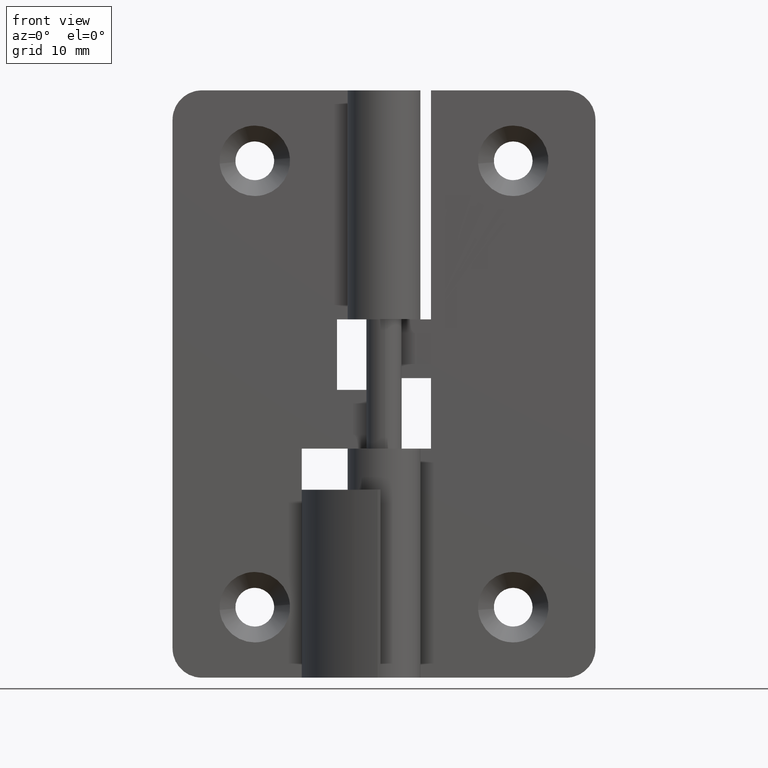
[diagram: clean part render]
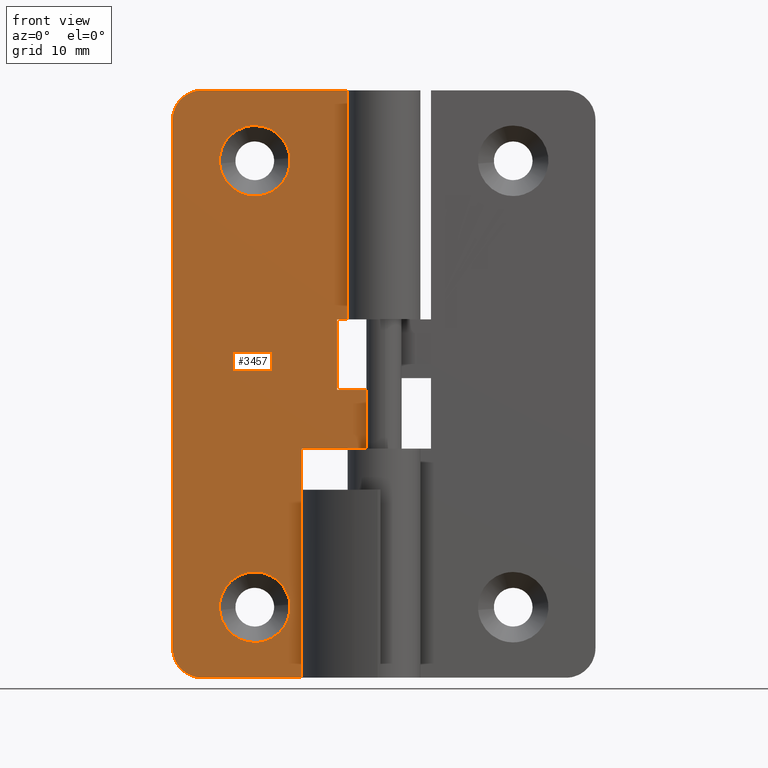
[diagram: same view with one face highlighted and labeled with its STEP entity id]
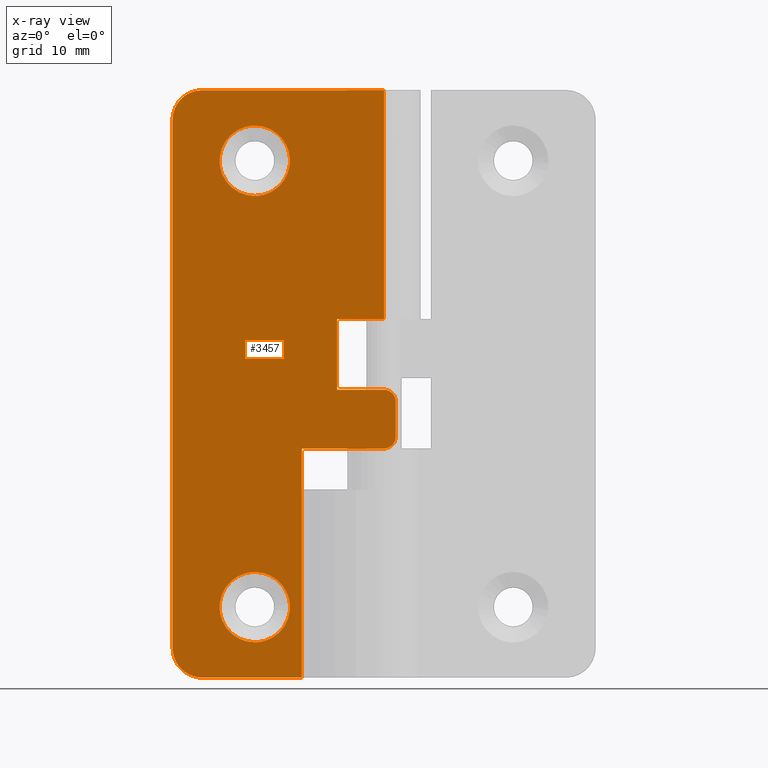
[diagram: x-ray of the same camera — body ghosted, the highlighted face saturated]
A machine part, front view. The second image highlights one B-rep face of the part: STEP entity #3457.
The next image is the same camera in x-ray: the body ghosted, the highlighted face saturated — about 0% of this face is hidden behind the body in this view.
In plain terms, the highlighted face is a freeform B-spline surface patch.
Its self-contained STEP definition (entity closure, byte-faithful):
#2110=CARTESIAN_POINT('',(-8.009248023461369,1.499999999998671,44.235362914866407));
#2111=VERTEX_POINT('',#2110);
#2117=CARTESIAN_POINT('',(-11.000007999999960,1.500000000000000,46.999993000000003));
#2118=VERTEX_POINT('',#2117);
#2119=CARTESIAN_POINT('',(-11.000007999999960,1.500000000000000,46.999993000000003));
#2120=CARTESIAN_POINT('',(-8.226829129920040,1.500000000000000,46.999992999999996));
#2121=CARTESIAN_POINT('',(-8.009248023461369,1.499999999998671,44.235362914866414));
#2129=(BOUNDED_CURVE()B_SPLINE_CURVE(2,(#2119,#2120,#2121),.UNSPECIFIED.,.F.,.U.)B_SPLINE_CURVE_WITH_KNOTS((3,3),(0.0,0.236331300631619),.UNSPECIFIED.)CURVE()GEOMETRIC_REPRESENTATION_ITEM()RATIONAL_B_SPLINE_CURVE((1.0,0.723120658606542,0.969723356169419))REPRESENTATION_ITEM(''));
#2130=EDGE_CURVE('',#2118,#2111,#2129,.T.);
#2132=CARTESIAN_POINT('',(-13.990767976538550,1.499999999998670,43.764607085133562));
#2133=VERTEX_POINT('',#2132);
#2134=CARTESIAN_POINT('',(-13.990767976538546,1.499999999998670,43.764607085133562));
#2135=CARTESIAN_POINT('',(-14.000015999999958,1.500000000000000,43.882114364646064));
#2136=CARTESIAN_POINT('',(-14.000015999999960,1.500000000000000,43.999985000000002));
#2137=CARTESIAN_POINT('',(-14.000015999999963,1.500000000000000,46.999993000000003));
#2138=CARTESIAN_POINT('',(-11.000007999999960,1.500000000000000,46.999993000000003));
#2146=(BOUNDED_CURVE()B_SPLINE_CURVE(2,(#2134,#2135,#2136,#2137,#2138),.UNSPECIFIED.,.F.,.U.)B_SPLINE_CURVE_WITH_KNOTS((3,2,3),(0.736331300631618,0.750000000000000,1.0),.UNSPECIFIED.)CURVE()GEOMETRIC_REPRESENTATION_ITEM()RATIONAL_B_SPLINE_CURVE((0.969723356169418,0.983986122580005,1.0,0.707106781186548,1.0))REPRESENTATION_ITEM(''));
#2147=EDGE_CURVE('',#2133,#2118,#2146,.T.);
#2184=CARTESIAN_POINT('',(-11.000007999999960,1.500000000000000,40.999977000000001));
#2185=VERTEX_POINT('',#2184);
#2186=CARTESIAN_POINT('',(-11.000007999999960,1.500000000000000,40.999977000000001));
#2187=CARTESIAN_POINT('',(-13.773186870079876,1.500000000000000,40.999977000000001));
#2188=CARTESIAN_POINT('',(-13.990767976538550,1.499999999998671,43.764607085133562));
#2196=(BOUNDED_CURVE()B_SPLINE_CURVE(2,(#2186,#2187,#2188),.UNSPECIFIED.,.F.,.U.)B_SPLINE_CURVE_WITH_KNOTS((3,3),(0.500000000000000,0.736331300631618),.UNSPECIFIED.)CURVE()GEOMETRIC_REPRESENTATION_ITEM()RATIONAL_B_SPLINE_CURVE((1.0,0.723120658606543,0.969723356169418))REPRESENTATION_ITEM(''));
#2197=EDGE_CURVE('',#2185,#2133,#2196,.T.);
#2199=CARTESIAN_POINT('',(-8.009248023461369,1.499999999998672,44.235362914866407));
#2200=CARTESIAN_POINT('',(-7.999999999999959,1.500000000000000,44.117855635353926));
#2201=CARTESIAN_POINT('',(-7.999999999999958,1.500000000000000,43.999985000000002));
#2202=CARTESIAN_POINT('',(-7.999999999999958,1.500000000000000,40.999976999999994));
#2203=CARTESIAN_POINT('',(-11.000007999999960,1.500000000000000,40.999977000000001));
#2211=(BOUNDED_CURVE()B_SPLINE_CURVE(2,(#2199,#2200,#2201,#2202,#2203),.UNSPECIFIED.,.F.,.U.)B_SPLINE_CURVE_WITH_KNOTS((3,2,3),(0.236331300631619,0.250000000000000,0.500000000000000),.UNSPECIFIED.)CURVE()GEOMETRIC_REPRESENTATION_ITEM()RATIONAL_B_SPLINE_CURVE((0.969723356169419,0.983986122580005,1.0,0.707106781186548,1.0))REPRESENTATION_ITEM(''));
#2212=EDGE_CURVE('',#2111,#2185,#2211,.T.);
#2438=CARTESIAN_POINT('',(-8.009240023461411,1.499999999998671,6.235369914866425));
#2439=VERTEX_POINT('',#2438);
#2445=CARTESIAN_POINT('',(-11.0,1.500000000000000,9.000000000000002));
#2446=VERTEX_POINT('',#2445);
#2447=CARTESIAN_POINT('',(-11.0,1.500000000000000,9.000000000000002));
#2448=CARTESIAN_POINT('',(-8.226821129920085,1.500000000000000,9.000000000000002));
#2449=CARTESIAN_POINT('',(-8.009240023461411,1.499999999998671,6.235369914866425));
#2457=(BOUNDED_CURVE()B_SPLINE_CURVE(2,(#2447,#2448,#2449),.UNSPECIFIED.,.F.,.U.)B_SPLINE_CURVE_WITH_KNOTS((3,3),(0.0,0.236331300631618),.UNSPECIFIED.)CURVE()GEOMETRIC_REPRESENTATION_ITEM()RATIONAL_B_SPLINE_CURVE((1.0,0.723120658606543,0.969723356169418))REPRESENTATION_ITEM(''));
#2458=EDGE_CURVE('',#2446,#2439,#2457,.T.);
#2460=CARTESIAN_POINT('',(-13.990759976538589,1.499999999998671,5.764614085133575));
#2461=VERTEX_POINT('',#2460);
#2462=CARTESIAN_POINT('',(-13.990759976538593,1.499999999998671,5.764614085133575));
#2463=CARTESIAN_POINT('',(-14.000007999999998,1.500000000000000,5.882121364646069));
#2464=CARTESIAN_POINT('',(-14.000007999999999,1.500000000000000,5.999992000000000));
#2465=CARTESIAN_POINT('',(-14.000007999999998,1.500000000000000,9.000000000000002));
#2466=CARTESIAN_POINT('',(-11.0,1.500000000000000,9.000000000000002));
#2474=(BOUNDED_CURVE()B_SPLINE_CURVE(2,(#2462,#2463,#2464,#2465,#2466),.UNSPECIFIED.,.F.,.U.)B_SPLINE_CURVE_WITH_KNOTS((3,2,3),(0.736331300631618,0.750000000000000,1.0),.UNSPECIFIED.)CURVE()GEOMETRIC_REPRESENTATION_ITEM()RATIONAL_B_SPLINE_CURVE((0.969723356169419,0.983986122580005,1.0,0.707106781186548,1.0))REPRESENTATION_ITEM(''));
#2475=EDGE_CURVE('',#2461,#2446,#2474,.T.);
#2512=CARTESIAN_POINT('',(-11.0,1.500000000000000,2.999984000000000));
#2513=VERTEX_POINT('',#2512);
#2514=CARTESIAN_POINT('',(-11.0,1.500000000000000,2.999984000000000));
#2515=CARTESIAN_POINT('',(-13.773178870079914,1.500000000000000,2.999984000000000));
#2516=CARTESIAN_POINT('',(-13.990759976538589,1.499999999998671,5.764614085133575));
#2524=(BOUNDED_CURVE()B_SPLINE_CURVE(2,(#2514,#2515,#2516),.UNSPECIFIED.,.F.,.U.)B_SPLINE_CURVE_WITH_KNOTS((3,3),(0.500000000000000,0.736331300631618),.UNSPECIFIED.)CURVE()GEOMETRIC_REPRESENTATION_ITEM()RATIONAL_B_SPLINE_CURVE((1.0,0.723120658606543,0.969723356169418))REPRESENTATION_ITEM(''));
#2525=EDGE_CURVE('',#2513,#2461,#2524,.T.);
#2527=CARTESIAN_POINT('',(-8.009240023461411,1.499999999998671,6.235369914866425));
#2528=CARTESIAN_POINT('',(-7.999991999999999,1.500000000000000,6.117862635353931));
#2529=CARTESIAN_POINT('',(-7.999991999999999,1.500000000000000,5.999992000000000));
#2530=CARTESIAN_POINT('',(-7.999992000000000,1.500000000000000,2.999984000000000));
#2531=CARTESIAN_POINT('',(-11.0,1.500000000000000,2.999984000000000));
#2539=(BOUNDED_CURVE()B_SPLINE_CURVE(2,(#2527,#2528,#2529,#2530,#2531),.UNSPECIFIED.,.F.,.U.)B_SPLINE_CURVE_WITH_KNOTS((3,2,3),(0.236331300631618,0.250000000000000,0.500000000000000),.UNSPECIFIED.)CURVE()GEOMETRIC_REPRESENTATION_ITEM()RATIONAL_B_SPLINE_CURVE((0.969723356169419,0.983986122580005,1.0,0.707106781186548,1.0))REPRESENTATION_ITEM(''));
#2540=EDGE_CURVE('',#2439,#2513,#2539,.T.);
#2620=CARTESIAN_POINT('',(-7.0,1.500000000000000,16.0));
#2621=VERTEX_POINT('',#2620);
#2799=CARTESIAN_POINT('',(-7.0,1.500000000000000,0.0));
#2800=VERTEX_POINT('',#2799);
#2801=CARTESIAN_POINT('',(-7.0,1.500000000000000,0.0));
#2802=CARTESIAN_POINT('',(-7.0,1.500000000000000,16.0));
#2803=QUASI_UNIFORM_CURVE('',1,(#2801,#2802),.UNSPECIFIED.,.F.,.U.);
#2804=EDGE_CURVE('',#2800,#2621,#2803,.T.);
#2830=CARTESIAN_POINT('',(1.0,1.499992000000060,23.500000000000000));
#2831=VERTEX_POINT('',#2830);
#2832=CARTESIAN_POINT('',(0.0,1.499992000000060,24.500000000000000));
#2833=VERTEX_POINT('',#2832);
#2834=CARTESIAN_POINT('',(1.0,1.499992000000060,23.500000000000000));
#2835=CARTESIAN_POINT('',(1.0,1.499992000000060,24.500000000000004));
#2836=CARTESIAN_POINT('',(0.0,1.499992000000060,24.500000000000000));
#2844=(BOUNDED_CURVE()B_SPLINE_CURVE(2,(#2834,#2835,#2836),.UNSPECIFIED.,.F.,.U.)CURVE()GEOMETRIC_REPRESENTATION_ITEM()QUASI_UNIFORM_CURVE()RATIONAL_B_SPLINE_CURVE((1.0,0.707106781186548,1.0))REPRESENTATION_ITEM(''));
#2845=EDGE_CURVE('',#2831,#2833,#2844,.T.);
#2891=CARTESIAN_POINT('',(0.0,1.500000000000000,19.500000000000000));
#2892=VERTEX_POINT('',#2891);
#2893=CARTESIAN_POINT('',(1.0,1.499992000000060,20.500000000000000));
#2894=VERTEX_POINT('',#2893);
#2895=CARTESIAN_POINT('',(0.0,1.500000000000000,19.500000000000000));
#2896=CARTESIAN_POINT('',(1.0,1.499996000000030,19.500000000000004));
#2897=CARTESIAN_POINT('',(1.0,1.499992000000060,20.500000000000000));
#2905=(BOUNDED_CURVE()B_SPLINE_CURVE(2,(#2895,#2896,#2897),.UNSPECIFIED.,.F.,.U.)CURVE()GEOMETRIC_REPRESENTATION_ITEM()QUASI_UNIFORM_CURVE()RATIONAL_B_SPLINE_CURVE((1.0,0.707106781186548,1.0))REPRESENTATION_ITEM(''));
#2906=EDGE_CURVE('',#2892,#2894,#2905,.T.);
#2943=CARTESIAN_POINT('',(1.0,1.499992000000060,20.500000000000000));
#2944=CARTESIAN_POINT('',(1.0,1.499992000000060,23.500000000000000));
#2945=QUASI_UNIFORM_CURVE('',1,(#2943,#2944),.UNSPECIFIED.,.F.,.U.);
#2946=EDGE_CURVE('',#2894,#2831,#2945,.T.);
#2963=CARTESIAN_POINT('',(-4.0,1.500000000000000,24.500000000000000));
#2964=VERTEX_POINT('',#2963);
#2965=CARTESIAN_POINT('',(0.0,1.499992000000060,24.500000000000000));
#2966=CARTESIAN_POINT('',(-4.0,1.500000000000000,24.500000000000000));
#2967=QUASI_UNIFORM_CURVE('',1,(#2965,#2966),.UNSPECIFIED.,.F.,.U.);
#2968=EDGE_CURVE('',#2833,#2964,#2967,.T.);
#2999=CARTESIAN_POINT('',(-7.0,1.499999999999946,19.500000000000000));
#3000=VERTEX_POINT('',#2999);
#3001=CARTESIAN_POINT('',(-7.0,1.499999999999946,19.500000000000000));
#3002=CARTESIAN_POINT('',(0.0,1.500000000000000,19.500000000000000));
#3003=QUASI_UNIFORM_CURVE('',1,(#3001,#3002),.UNSPECIFIED.,.F.,.U.);
#3004=EDGE_CURVE('',#3000,#2892,#3003,.T.);
#3049=CARTESIAN_POINT('',(9.184548E-017,1.500000000000000,30.500000000000000));
#3050=VERTEX_POINT('',#3049);
#3070=CARTESIAN_POINT('',(-4.0,1.499999999999946,30.500000000000000));
#3071=VERTEX_POINT('',#3070);
#3072=CARTESIAN_POINT('',(-4.0,1.499999999999946,30.500000000000000));
#3073=CARTESIAN_POINT('',(9.184548E-017,1.500000000000000,30.500000000000000));
#3074=QUASI_UNIFORM_CURVE('',1,(#3072,#3073),.UNSPECIFIED.,.F.,.U.);
#3075=EDGE_CURVE('',#3071,#3050,#3074,.T.);
#3106=CARTESIAN_POINT('',(-15.500000000000000,1.500000000000000,50.0));
#3107=VERTEX_POINT('',#3106);
#3108=CARTESIAN_POINT('',(-18.0,1.500000000000000,47.500000000000000));
#3109=VERTEX_POINT('',#3108);
#3110=CARTESIAN_POINT('',(-15.500000000000000,1.500000000000000,50.0));
#3111=CARTESIAN_POINT('',(-18.000000000000007,1.500000000000000,50.0));
#3112=CARTESIAN_POINT('',(-18.0,1.500000000000000,47.500000000000000));
#3120=(BOUNDED_CURVE()B_SPLINE_CURVE(2,(#3110,#3111,#3112),.UNSPECIFIED.,.F.,.U.)CURVE()GEOMETRIC_REPRESENTATION_ITEM()QUASI_UNIFORM_CURVE()RATIONAL_B_SPLINE_CURVE((1.0,0.707106781186548,1.0))REPRESENTATION_ITEM(''));
#3121=EDGE_CURVE('',#3107,#3109,#3120,.T.);
#3167=CARTESIAN_POINT('',(-18.0,1.500000000000000,2.499999999999945));
#3168=VERTEX_POINT('',#3167);
#3169=CARTESIAN_POINT('',(-15.500000000000000,1.500000000000000,0.0));
#3170=VERTEX_POINT('',#3169);
#3171=CARTESIAN_POINT('',(-18.0,1.500000000000000,2.500000000000000));
#3172=CARTESIAN_POINT('',(-18.000000000000007,1.500000000000000,0.0));
#3173=CARTESIAN_POINT('',(-15.500000000000000,1.500000000000000,0.0));
#3181=(BOUNDED_CURVE()B_SPLINE_CURVE(2,(#3171,#3172,#3173),.UNSPECIFIED.,.F.,.U.)CURVE()GEOMETRIC_REPRESENTATION_ITEM()QUASI_UNIFORM_CURVE()RATIONAL_B_SPLINE_CURVE((1.0,0.707106781186548,1.0))REPRESENTATION_ITEM(''));
#3182=EDGE_CURVE('',#3168,#3170,#3181,.T.);
#3227=CARTESIAN_POINT('',(9.184548E-017,1.500000000000000,50.0));
#3228=VERTEX_POINT('',#3227);
#3229=CARTESIAN_POINT('',(9.184548E-017,1.500000000000000,50.0));
#3230=CARTESIAN_POINT('',(-15.500000000000000,1.500000000000000,50.0));
#3231=QUASI_UNIFORM_CURVE('',1,(#3229,#3230),.UNSPECIFIED.,.F.,.U.);
#3232=EDGE_CURVE('',#3228,#3107,#3231,.T.);
#3295=CARTESIAN_POINT('',(-18.0,1.500000000000000,47.500000000000000));
#3296=CARTESIAN_POINT('',(-18.0,1.500000000000000,2.499999999999945));
#3297=QUASI_UNIFORM_CURVE('',1,(#3295,#3296),.UNSPECIFIED.,.F.,.U.);
#3298=EDGE_CURVE('',#3109,#3168,#3297,.T.);
#3320=CARTESIAN_POINT('',(-7.0,1.500000000000000,0.0));
#3321=CARTESIAN_POINT('',(-15.500000000000000,1.500000000000000,0.0));
#3322=QUASI_UNIFORM_CURVE('',1,(#3320,#3321),.UNSPECIFIED.,.F.,.U.);
#3323=EDGE_CURVE('',#2800,#3170,#3322,.T.);
#3358=CARTESIAN_POINT('',(9.184548E-017,1.500000000000000,50.0));
#3359=CARTESIAN_POINT('',(9.184548E-017,1.500000000000000,30.500000000000000));
#3360=QUASI_UNIFORM_CURVE('',1,(#3358,#3359),.UNSPECIFIED.,.F.,.U.);
#3361=EDGE_CURVE('',#3228,#3050,#3360,.T.);
#3415=CARTESIAN_POINT('',(-18.949049963174311,1.500000000000000,52.497499903090286));
#3416=CARTESIAN_POINT('',(-18.949049963174311,1.500000000000000,-2.497501244194806));
#3417=CARTESIAN_POINT('',(1.949050472794025,1.500000000000000,52.497499903090301));
#3418=CARTESIAN_POINT('',(1.949050472794025,1.500000000000000,-2.497501244194806));
#3419=B_SPLINE_SURFACE_WITH_KNOTS('',1,1,((#3415,#3417),(#3416,#3418)),.UNSPECIFIED.,.F.,.F.,.U.,(2,2),(2,2),(0.0,54.995001147285109),(0.0,20.898100435968342),.UNSPECIFIED.);
#3420=ORIENTED_EDGE('',*,*,#3004,.T.);
#3421=ORIENTED_EDGE('',*,*,#2906,.T.);
#3422=ORIENTED_EDGE('',*,*,#2946,.T.);
#3423=ORIENTED_EDGE('',*,*,#2845,.T.);
#3424=ORIENTED_EDGE('',*,*,#2968,.T.);
#3425=CARTESIAN_POINT('',(-4.0,1.500000000000000,24.500000000000000));
#3426=CARTESIAN_POINT('',(-4.0,1.499999999999946,30.500000000000000));
#3427=QUASI_UNIFORM_CURVE('',1,(#3425,#3426),.UNSPECIFIED.,.F.,.U.);
#3428=EDGE_CURVE('',#2964,#3071,#3427,.T.);
#3429=ORIENTED_EDGE('',*,*,#3428,.T.);
#3430=ORIENTED_EDGE('',*,*,#3075,.T.);
#3431=ORIENTED_EDGE('',*,*,#3361,.F.);
#3432=ORIENTED_EDGE('',*,*,#3232,.T.);
#3433=ORIENTED_EDGE('',*,*,#3121,.T.);
#3434=ORIENTED_EDGE('',*,*,#3298,.T.);
#3435=ORIENTED_EDGE('',*,*,#3182,.T.);
#3436=ORIENTED_EDGE('',*,*,#3323,.F.);
#3437=ORIENTED_EDGE('',*,*,#2804,.T.);
#3438=CARTESIAN_POINT('',(-7.0,1.500000000000000,16.0));
#3439=CARTESIAN_POINT('',(-7.0,1.499999999999946,19.500000000000000));
#3440=QUASI_UNIFORM_CURVE('',1,(#3438,#3439),.UNSPECIFIED.,.F.,.U.);
#3441=EDGE_CURVE('',#2621,#3000,#3440,.T.);
#3442=ORIENTED_EDGE('',*,*,#3441,.T.);
#3443=EDGE_LOOP('',(#3420,#3421,#3422,#3423,#3424,#3429,#3430,#3431,#3432,#3433,#3434,#3435,#3436,#3437,#3442));
#3444=FACE_OUTER_BOUND('',#3443,.T.);
#3445=ORIENTED_EDGE('',*,*,#2525,.T.);
#3446=ORIENTED_EDGE('',*,*,#2475,.T.);
#3447=ORIENTED_EDGE('',*,*,#2458,.T.);
#3448=ORIENTED_EDGE('',*,*,#2540,.T.);
#3449=EDGE_LOOP('',(#3445,#3446,#3447,#3448));
#3450=FACE_BOUND('',#3449,.T.);
#3451=ORIENTED_EDGE('',*,*,#2197,.T.);
#3452=ORIENTED_EDGE('',*,*,#2147,.T.);
#3453=ORIENTED_EDGE('',*,*,#2130,.T.);
#3454=ORIENTED_EDGE('',*,*,#2212,.T.);
#3455=EDGE_LOOP('',(#3451,#3452,#3453,#3454));
#3456=FACE_BOUND('',#3455,.T.);
#3457=ADVANCED_FACE('',(#3444,#3450,#3456),#3419,.T.);